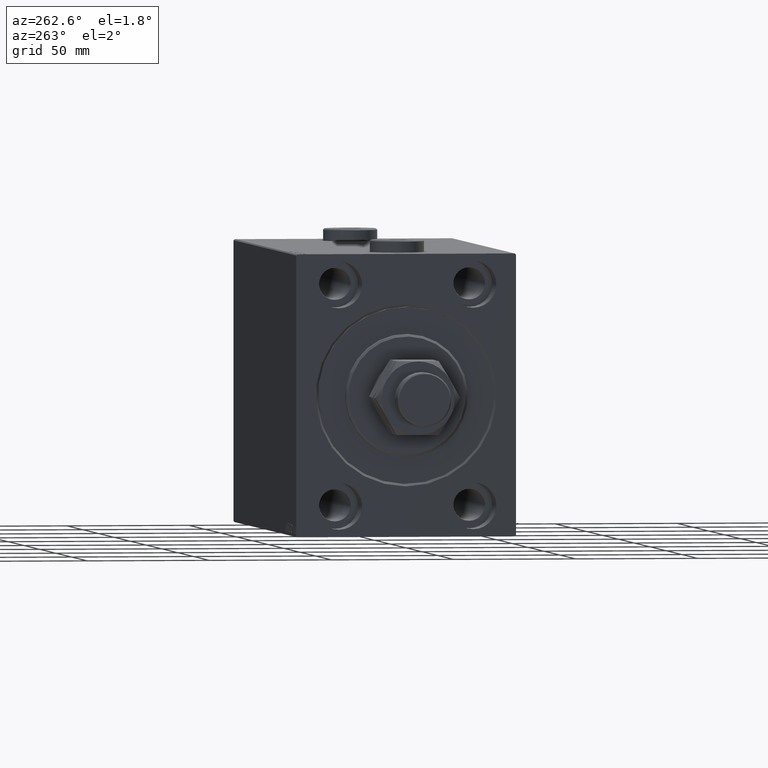
[diagram: clean part render]
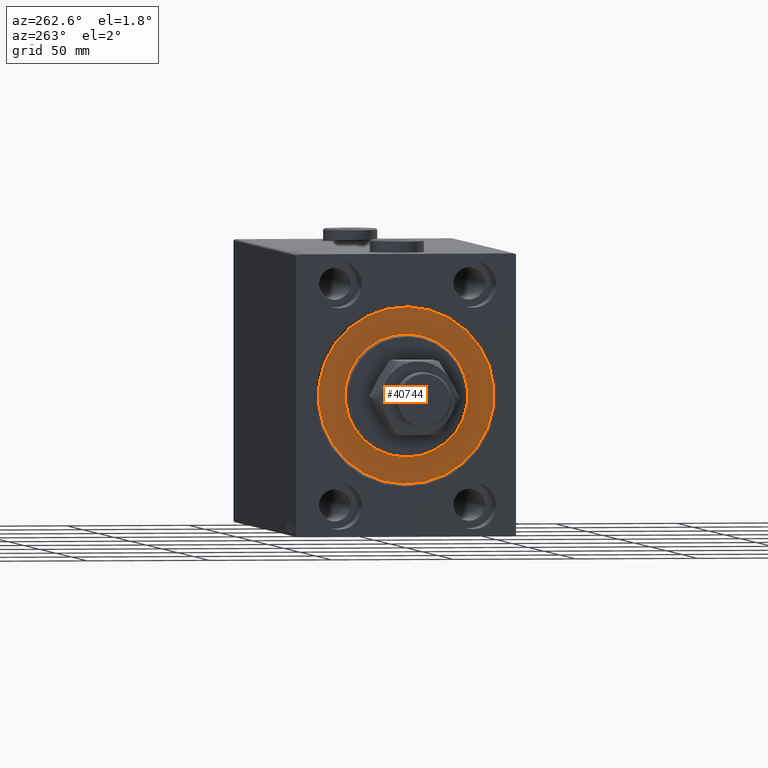
[diagram: same view with one face highlighted and labeled with its STEP entity id]
A machine part, auxiliary view. The second image highlights one B-rep face of the part: STEP entity #40744.
In plain terms, the highlighted planar face has unit normal (1, 0, -0).
Its self-contained STEP definition (entity closure, byte-faithful):
#848 = VERTEX_POINT ( 'NONE', #15006 ) ;
#5911 = ORIENTED_EDGE ( 'NONE', *, *, #35348, .F. ) ;
#7508 = EDGE_CURVE ( 'NONE', #30295, #21581, #38514, .T. ) ;
#7537 = CIRCLE ( 'NONE', #31078, 36.00000000000000000 ) ;
#10390 = EDGE_CURVE ( 'NONE', #21581, #30295, #41944, .T. ) ;
#10819 = DIRECTION ( 'NONE',  ( 0.000000000000000000, 0.000000000000000000, -1.000000000000000000 ) ) ;
#11237 = FACE_BOUND ( 'NONE', #12249, .T. ) ;
#11282 = CARTESIAN_POINT ( 'NONE',  ( 0.000000000000000000, 0.000000000000000000, 0.000000000000000000 ) ) ;
#12249 = EDGE_LOOP ( 'NONE', ( #46757, #21060 ) ) ;
#12404 = DIRECTION ( 'NONE',  ( 0.000000000000000000, 0.000000000000000000, 1.000000000000000000 ) ) ;
#13253 = AXIS2_PLACEMENT_3D ( 'NONE', #19210, #33708, #30146 ) ;
#13697 = CARTESIAN_POINT ( 'NONE',  ( 0.000000000000000000, 0.000000000000000000, 0.000000000000000000 ) ) ;
#15006 = CARTESIAN_POINT ( 'NONE',  ( 0.000000000000000000, 0.000000000000000000, -36.00000000000000000 ) ) ;
#16900 = AXIS2_PLACEMENT_3D ( 'NONE', #13697, #31993, #10819 ) ;
#18644 = DIRECTION ( 'NONE',  ( 0.000000000000000000, 0.000000000000000000, -1.000000000000000000 ) ) ;
#19210 = CARTESIAN_POINT ( 'NONE',  ( 0.000000000000000000, 0.000000000000000000, 0.000000000000000000 ) ) ;
#19533 = DIRECTION ( 'NONE',  ( -1.000000000000000000, 0.000000000000000000, 0.000000000000000000 ) ) ;
#20746 = AXIS2_PLACEMENT_3D ( 'NONE', #40231, #40459, #22388 ) ;
#21060 = ORIENTED_EDGE ( 'NONE', *, *, #7508, .F. ) ;
#21581 = VERTEX_POINT ( 'NONE', #29724 ) ;
#22388 = DIRECTION ( 'NONE',  ( 0.000000000000000000, 0.000000000000000000, 1.000000000000000000 ) ) ;
#22429 = DIRECTION ( 'NONE',  ( 1.000000000000000000, -0.000000000000000000, 0.000000000000000000 ) ) ;
#25721 = FACE_OUTER_BOUND ( 'NONE', #34193, .T. ) ;
#25946 = PLANE ( 'NONE',  #20746 ) ;
#28433 = VERTEX_POINT ( 'NONE', #38699 ) ;
#29724 = CARTESIAN_POINT ( 'NONE',  ( 0.000000000000000000, 0.000000000000000000, 25.00000000000000000 ) ) ;
#30146 = DIRECTION ( 'NONE',  ( 0.000000000000000000, 0.000000000000000000, 1.000000000000000000 ) ) ;
#30295 = VERTEX_POINT ( 'NONE', #31887 ) ;
#31078 = AXIS2_PLACEMENT_3D ( 'NONE', #38309, #19533, #12404 ) ;
#31887 = CARTESIAN_POINT ( 'NONE',  ( 0.000000000000000000, 3.061616997868383043E-15, -25.00000000000000000 ) ) ;
#31993 = DIRECTION ( 'NONE',  ( 1.000000000000000000, -0.000000000000000000, 0.000000000000000000 ) ) ;
#33674 = ORIENTED_EDGE ( 'NONE', *, *, #43827, .F. ) ;
#33708 = DIRECTION ( 'NONE',  ( -1.000000000000000000, 0.000000000000000000, 0.000000000000000000 ) ) ;
#33721 = CIRCLE ( 'NONE', #13253, 36.00000000000000000 ) ;
#34193 = EDGE_LOOP ( 'NONE', ( #33674, #5911 ) ) ;
#34713 = AXIS2_PLACEMENT_3D ( 'NONE', #11282, #22429, #18644 ) ;
#35348 = EDGE_CURVE ( 'NONE', #28433, #848, #7537, .T. ) ;
#38309 = CARTESIAN_POINT ( 'NONE',  ( 0.000000000000000000, 0.000000000000000000, 0.000000000000000000 ) ) ;
#38514 = CIRCLE ( 'NONE', #34713, 25.00000000000000000 ) ;
#38699 = CARTESIAN_POINT ( 'NONE',  ( 0.000000000000000000, 4.408728476930470856E-15, 36.00000000000000000 ) ) ;
#40231 = CARTESIAN_POINT ( 'NONE',  ( 0.000000000000000000, 0.000000000000000000, 0.000000000000000000 ) ) ;
#40459 = DIRECTION ( 'NONE',  ( -1.000000000000000000, 0.000000000000000000, 0.000000000000000000 ) ) ;
#40744 = ADVANCED_FACE ( 'NONE', ( #11237, #25721 ), #25946, .F. ) ;
#41944 = CIRCLE ( 'NONE', #16900, 25.00000000000000000 ) ;
#43827 = EDGE_CURVE ( 'NONE', #848, #28433, #33721, .T. ) ;
#46757 = ORIENTED_EDGE ( 'NONE', *, *, #10390, .F. ) ;